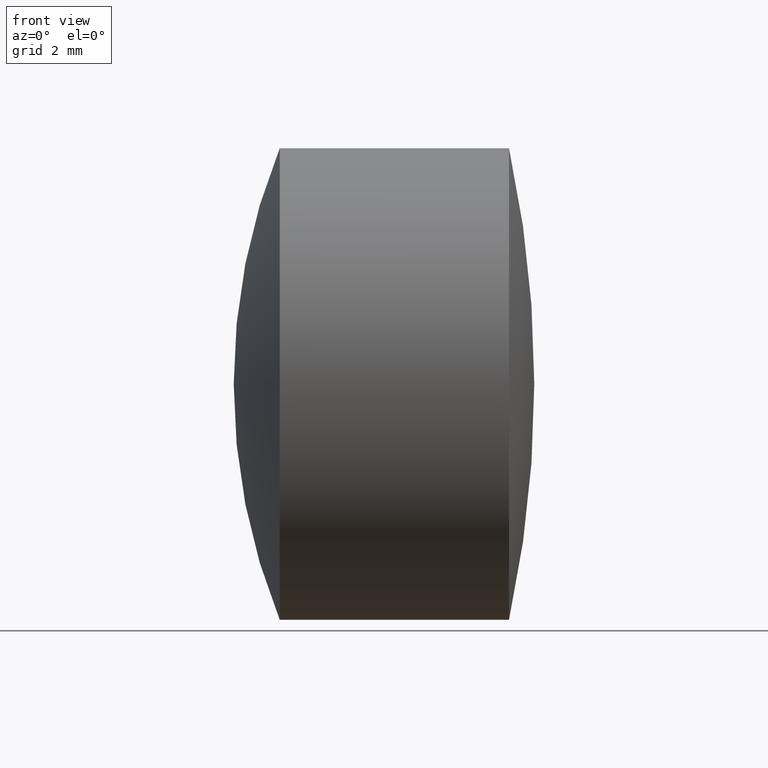
[diagram: clean part render]
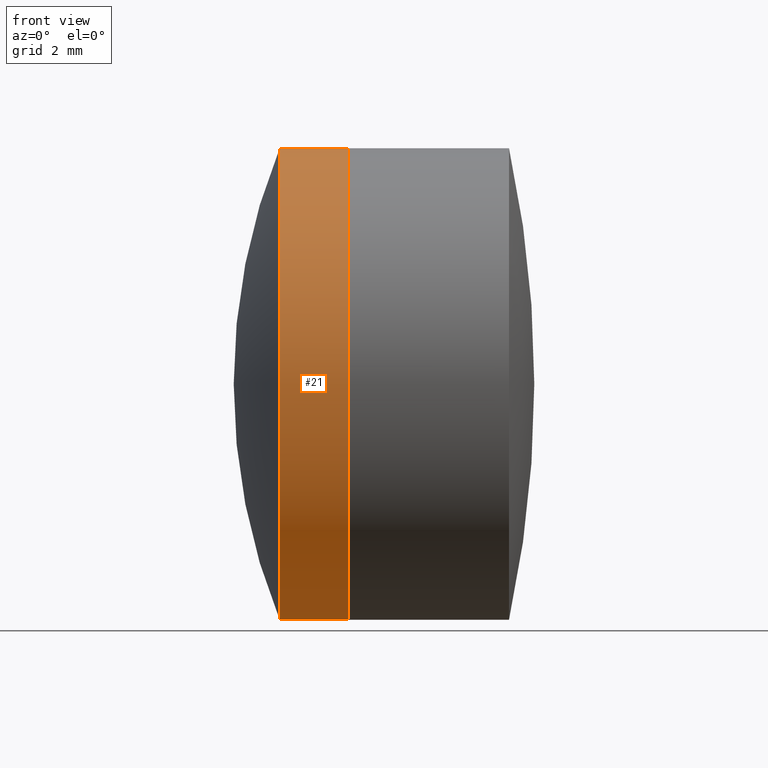
[diagram: same view with one face highlighted and labeled with its STEP entity id]
A machine part, front view. The second image highlights one B-rep face of the part: STEP entity #21.
In plain terms, the highlighted cylindrical surface (partial cylindrical patch) has radius 4 mm, axis along (-1, -0, -0).
Its self-contained STEP definition (entity closure, byte-faithful):
#19 = DIRECTION ( 'NONE',  ( 0.0000000000000000000, 0.0000000000000000000, 1.000000000000000000 ) ) ;
#21 = ADVANCED_FACE ( 'NONE', ( #125 ), #276, .T. ) ;
#24 = DIRECTION ( 'NONE',  ( -1.000000000000000000, -0.0000000000000000000, -0.0000000000000000000 ) ) ;
#27 = CIRCLE ( 'NONE', #76, 4.000000000000000000 ) ;
#46 = ORIENTED_EDGE ( 'NONE', *, *, #255, .T. ) ;
#47 = VERTEX_POINT ( 'NONE', #270 ) ;
#50 = VERTEX_POINT ( 'NONE', #301 ) ;
#62 = EDGE_LOOP ( 'NONE', ( #332, #74, #46, #155 ) ) ;
#74 = ORIENTED_EDGE ( 'NONE', *, *, #229, .T. ) ;
#76 = AXIS2_PLACEMENT_3D ( 'NONE', #158, #218, #337 ) ;
#77 = CARTESIAN_POINT ( 'NONE',  ( -1.962826851007154500, 0.0000000000000000000, 3.999999999999998200 ) ) ;
#104 = LINE ( 'NONE', #300, #345 ) ;
#105 = EDGE_CURVE ( 'NONE', #47, #50, #234, .T. ) ;
#107 = AXIS2_PLACEMENT_3D ( 'NONE', #246, #278, #19 ) ;
#125 = FACE_OUTER_BOUND ( 'NONE', #62, .T. ) ;
#155 = ORIENTED_EDGE ( 'NONE', *, *, #314, .F. ) ;
#158 = CARTESIAN_POINT ( 'NONE',  ( -0.8043704380087720600, 0.0000000000000000000, 0.0000000000000000000 ) ) ;
#170 = VECTOR ( 'NONE', #244, 1000.000000000000000 ) ;
#172 = CARTESIAN_POINT ( 'NONE',  ( -9.702612178336682500, 4.898587196589412800E-016, -4.000000000000000000 ) ) ;
#175 = CIRCLE ( 'NONE', #177, 4.000000000000000000 ) ;
#177 = AXIS2_PLACEMENT_3D ( 'NONE', #258, #24, #191 ) ;
#191 = DIRECTION ( 'NONE',  ( 0.0000000000000000000, 0.0000000000000000000, 1.000000000000000000 ) ) ;
#208 = VERTEX_POINT ( 'NONE', #264 ) ;
#218 = DIRECTION ( 'NONE',  ( -1.000000000000000000, -0.0000000000000000000, -0.0000000000000000000 ) ) ;
#222 = VERTEX_POINT ( 'NONE', #77 ) ;
#229 = EDGE_CURVE ( 'NONE', #47, #208, #27, .T. ) ;
#234 = LINE ( 'NONE', #172, #170 ) ;
#244 = DIRECTION ( 'NONE',  ( -1.000000000000000000, -0.0000000000000000000, -0.0000000000000000000 ) ) ;
#246 = CARTESIAN_POINT ( 'NONE',  ( -9.702612178336682500, 0.0000000000000000000, 0.0000000000000000000 ) ) ;
#255 = EDGE_CURVE ( 'NONE', #208, #222, #104, .T. ) ;
#258 = CARTESIAN_POINT ( 'NONE',  ( -1.962826851007154500, 0.0000000000000000000, 0.0000000000000000000 ) ) ;
#264 = CARTESIAN_POINT ( 'NONE',  ( -0.8043704380087720600, 0.0000000000000000000, 4.000000000000000000 ) ) ;
#270 = CARTESIAN_POINT ( 'NONE',  ( -0.8043704380087720600, 4.898587196589412800E-016, -4.000000000000000000 ) ) ;
#276 = CYLINDRICAL_SURFACE ( 'NONE', #107, 4.000000000000000000 ) ;
#278 = DIRECTION ( 'NONE',  ( -1.000000000000000000, -0.0000000000000000000, -0.0000000000000000000 ) ) ;
#300 = CARTESIAN_POINT ( 'NONE',  ( -9.702612178336682500, 0.0000000000000000000, 4.000000000000000000 ) ) ;
#301 = CARTESIAN_POINT ( 'NONE',  ( -1.962826851007154500, 4.898587196589411800E-016, -3.999999999999998200 ) ) ;
#314 = EDGE_CURVE ( 'NONE', #50, #222, #175, .T. ) ;
#332 = ORIENTED_EDGE ( 'NONE', *, *, #105, .F. ) ;
#336 = DIRECTION ( 'NONE',  ( -1.000000000000000000, -0.0000000000000000000, -0.0000000000000000000 ) ) ;
#337 = DIRECTION ( 'NONE',  ( 0.0000000000000000000, 0.0000000000000000000, 1.000000000000000000 ) ) ;
#345 = VECTOR ( 'NONE', #336, 1000.000000000000000 ) ;